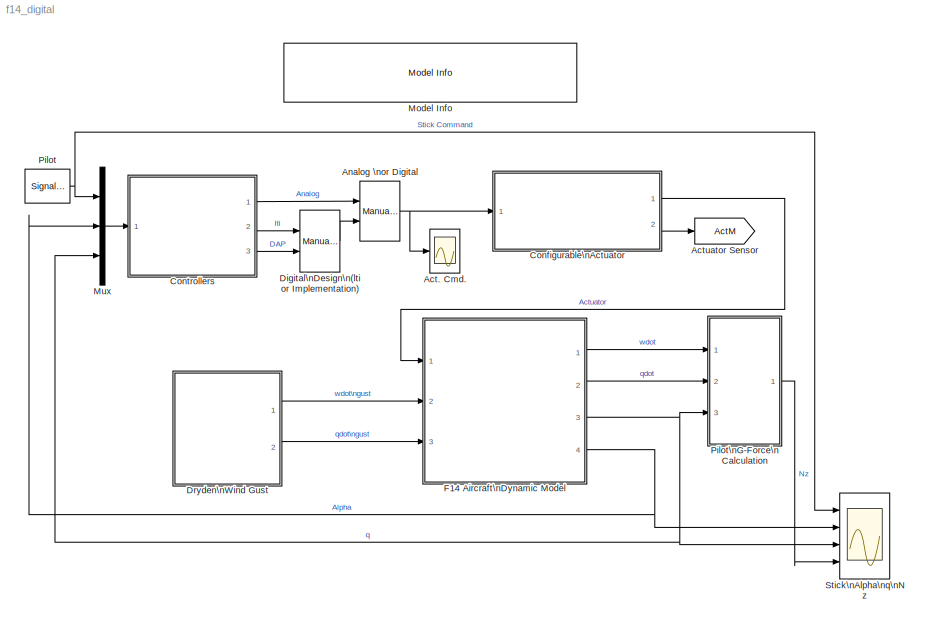
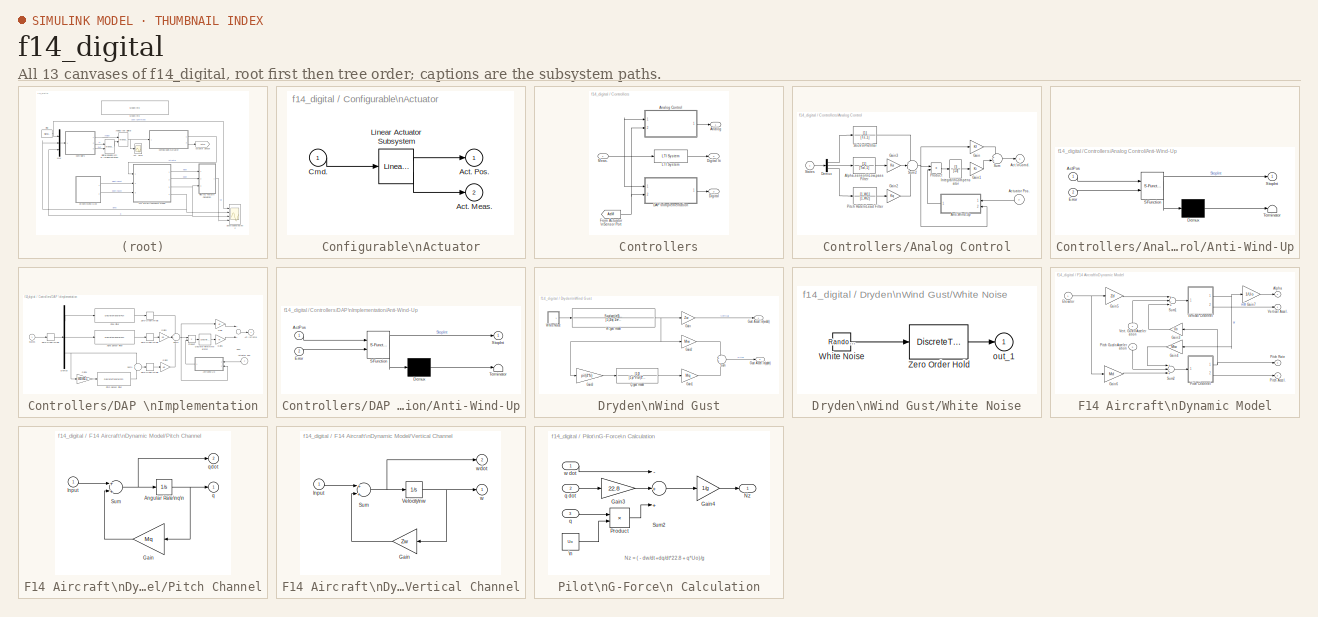
[diagram: thumbnail index - all 13 canvases of the model, root first then tree order]
MODEL f14_digital
KIND model
CONFIG PreLoadFcn = f14dat_digital
BLOCK [Scope] Act. Cmd.
  DataFormat = Array
  LimitDataPoints = off
  NumInputPorts = 1
  Ports = [1]
  TickLabels = on
  TimeRange = 15
  YMax = 2.5
  YMin = -2.5
BLOCK [Goto] Actuator Sensor
  DialogController = Simulink.DDGSource
  GotoTag = ActM
  TagVisibility = global
BLOCK [Reference] Analog \nor Digital  REF=simulink/Signal\nRouting/Manual Switch
  Ports = [2, 1]
  ShowPortLabels = on
  SourceBlock = simulink/Signal\nRouting/Manual Switch
  SourceType = Manual Switch
  action = 0
  sw = 1
BLOCK [SubSystem] Configurable\nActuator
  BlockChoice = Linear Actuator Subsystem
  MemberBlocks = Linear Actuator Subsystem,Non-Linear Actuator Subsystem
  MinAlgLoopOccurrences = off
  Ports = [1, 2]
  PropExecContextAcrossSSBoundary = on
  RTWSystemCode = Auto
  TemplateBlock = f14actuator/Configurable\nActuator
  TreatAsAtomicUnit = off
BLOCK [Outport] Configurable\nActuator/Act. Meas.
  BusOutputAsStruct = off
  IconDisplay = Port number
  Port = 2
BLOCK [Outport] Configurable\nActuator/Act. Pos.
  BusOutputAsStruct = off
  IconDisplay = Port number
BLOCK [Inport] Configurable\nActuator/Cmd.
  IconDisplay = Port number
  LatchInput = off
  Port = 1
BLOCK [Reference] Configurable\nActuator/Linear Actuator Subsystem  REF=f14actuator/Linear Actuator Subsystem  (lib defined in mdl_813533b40b07)
  Ports = [1, 2]
  ShowPortLabels = on
  SourceBlock = f14actuator/Linear Actuator Subsystem
BLOCK [SubSystem] Controllers
  MaskDisplay = image(contrgb)
  MaskIconFrame = on
  MaskIconOpaque = on
  MaskIconRotate = none
  MaskIconUnits = autoscale
  MinAlgLoopOccurrences = off
  Ports = [1, 3]
  PropExecContextAcrossSSBoundary = on
  RTWSystemCode = Auto
  TreatAsAtomicUnit = off
BLOCK [Outport] Controllers/Analog
  BusOutputAsStruct = off
  IconDisplay = Port number
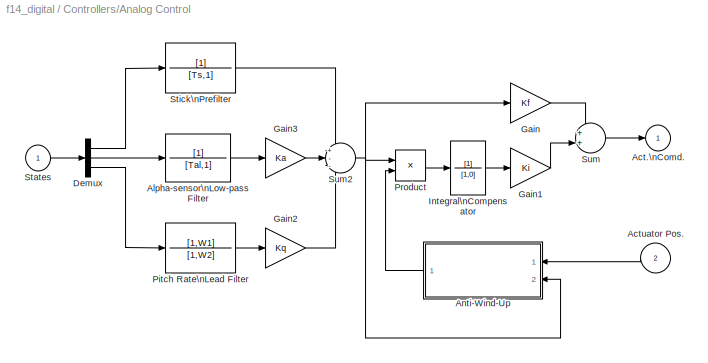
BLOCK [SubSystem] Controllers/Analog Control
  MinAlgLoopOccurrences = off
  Ports = [2, 1]
  PropExecContextAcrossSSBoundary = on
  RTWSystemCode = Auto
  TreatAsAtomicUnit = off
BLOCK [Outport] Controllers/Analog Control/Act.\nComd.
  BusOutputAsStruct = off
  IconDisplay = Port number
  InitialOutput = 0
BLOCK [Inport] Controllers/Analog Control/Actuator Pos.
  IconDisplay = Port number
  LatchInput = off
  Port = 2
BLOCK [TransferFcn] Controllers/Analog Control/Alpha-sensor\nLow-pass Filter
  Denominator = [Tal,1]
  MaskIconFrame = on
  MaskIconOpaque = on
  MaskIconRotate = none
  MaskIconUnits = autoscale
BLOCK [SubSystem] Controllers/Analog Control/Anti-Wind-Up
  MaskDescription = Stateflow diagram
  MaskDisplay = plot(sf('Private','sfblk','xIcon'),sf('Private','sfblk','yIcon'));text(0.5,0,sf('Private', 'sfblk', 'tIcon'),'HorizontalAl','Center','VerticalAl','Bottom');
  MaskIconFrame = off
  MaskIconOpaque = off
  MaskIconRotate = none
  MaskIconUnits = autoscale
  MaskSelfModifiable = on
  MaskType = Stateflow
  MinAlgLoopOccurrences = off
  Ports = [2, 1]
  PropExecContextAcrossSSBoundary = on
  RTWSystemCode = Auto
  TreatAsAtomicUnit = off
BLOCK [Demux] Controllers/Analog Control/Anti-Wind-Up/ Demux 
  Outputs = 1
  Ports = [1, 1]
BLOCK [S-Function] Controllers/Analog Control/Anti-Wind-Up/ SFunction 
  FunctionName = sf_sfun
  PortCounts = [2 2]
  Ports = [2, 2]
  Tag = Stateflow S-Function f14_digital 7
BLOCK [Terminator] Controllers/Analog Control/Anti-Wind-Up/ Terminator 
BLOCK [Inport] Controllers/Analog Control/Anti-Wind-Up/ActPos
  IconDisplay = Port number
  LatchInput = off
  Port = 1
BLOCK [Inport] Controllers/Analog Control/Anti-Wind-Up/Error
  IconDisplay = Port number
  LatchInput = off
  Port = 2
BLOCK [Outport] Controllers/Analog Control/Anti-Wind-Up/StopInt
  BusOutputAsStruct = off
  IconDisplay = Port number
BLOCK [Demux] Controllers/Analog Control/Demux
  Outputs = 3
  Ports = [1, 3]
BLOCK [Gain] Controllers/Analog Control/Gain
  Gain = Kf
BLOCK [Gain] Controllers/Analog Control/Gain1
  Gain = Ki
BLOCK [Gain] Controllers/Analog Control/Gain2
  Gain = Kq
  MaskIconFrame = on
  MaskIconOpaque = on
  MaskIconRotate = none
  MaskIconUnits = autoscale
BLOCK [Gain] Controllers/Analog Control/Gain3
  Gain = Ka
  MaskIconFrame = on
  MaskIconOpaque = on
  MaskIconRotate = none
  MaskIconUnits = autoscale
BLOCK [TransferFcn] Controllers/Analog Control/Integral\nCompensator
  Denominator = [1,0]
BLOCK [TransferFcn] Controllers/Analog Control/Pitch Rate\nLead Filter
  Denominator = [1,W2]
  MaskIconFrame = on
  MaskIconOpaque = on
  MaskIconRotate = none
  MaskIconUnits = autoscale
  Numerator = [1,W1]
BLOCK [Product] Controllers/Analog Control/Product
  Ports = [2, 1]
BLOCK [Inport] Controllers/Analog Control/States
  IconDisplay = Port number
  LatchInput = off
  Port = 1
BLOCK [TransferFcn] Controllers/Analog Control/Stick\nPrefilter
  Denominator = [Ts,1]
BLOCK [Sum] Controllers/Analog Control/Sum
  IconShape = round
  Inputs = 2
  Ports = [2, 1]
BLOCK [Sum] Controllers/Analog Control/Sum2
  IconShape = round
  Inputs = +--
  Ports = [3, 1]
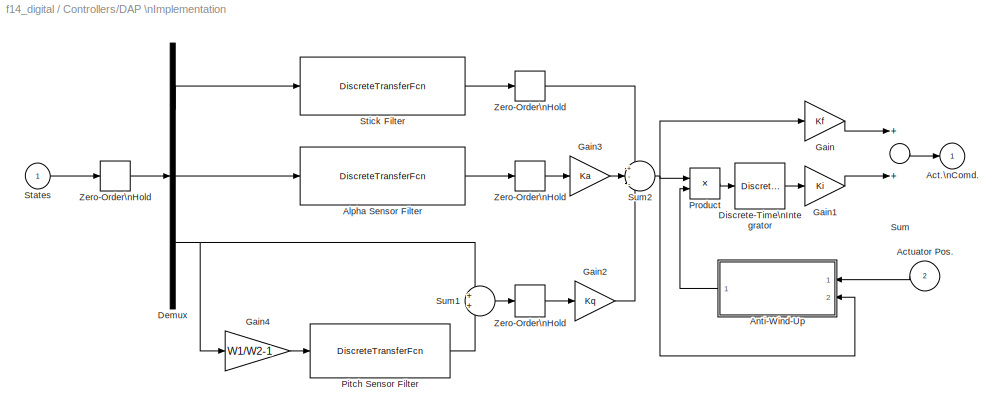
BLOCK [SubSystem] Controllers/DAP \nImplementation
  MinAlgLoopOccurrences = off
  Ports = [2, 1]
  PropExecContextAcrossSSBoundary = on
  RTWSystemCode = Auto
  TreatAsAtomicUnit = off
BLOCK [Outport] Controllers/DAP \nImplementation/Act.\nComd.
  BusOutputAsStruct = off
  IconDisplay = Port number
  InitialOutput = 0
BLOCK [Inport] Controllers/DAP \nImplementation/Actuator Pos.
  IconDisplay = Port number
  LatchInput = off
  Port = 2
BLOCK [DiscreteTransferFcn] Controllers/DAP \nImplementation/Alpha Sensor Filter
  Denominator = [1 -exp(-deltat1/Tal)]
  Numerator = [1-exp(-deltat1/Tal)]
  SampleTime = deltat1
BLOCK [SubSystem] Controllers/DAP \nImplementation/Anti-Wind-Up
  MaskDescription = Stateflow diagram
  MaskDisplay = plot(sf('Private','sfblk','xIcon'),sf('Private','sfblk','yIcon'));text(0.5,0,sf('Private', 'sfblk', 'tIcon'),'HorizontalAl','Center','VerticalAl','Bottom');
  MaskIconFrame = off
  MaskIconOpaque = off
  MaskIconRotate = none
  MaskIconUnits = autoscale
  MaskSelfModifiable = on
  MaskType = Stateflow
  MinAlgLoopOccurrences = off
  Ports = [2, 1]
  PropExecContextAcrossSSBoundary = on
  RTWSystemCode = Auto
  TreatAsAtomicUnit = off
BLOCK [Demux] Controllers/DAP \nImplementation/Anti-Wind-Up/ Demux 
  Outputs = 1
  Ports = [1, 1]
BLOCK [S-Function] Controllers/DAP \nImplementation/Anti-Wind-Up/ SFunction 
  FunctionName = sf_sfun
  PortCounts = [2 2]
  Ports = [2, 2]
  Tag = Stateflow S-Function f14_digital 2
BLOCK [Terminator] Controllers/DAP \nImplementation/Anti-Wind-Up/ Terminator 
BLOCK [Inport] Controllers/DAP \nImplementation/Anti-Wind-Up/ActPos
  IconDisplay = Port number
  LatchInput = off
  Port = 1
BLOCK [Inport] Controllers/DAP \nImplementation/Anti-Wind-Up/Error
  IconDisplay = Port number
  LatchInput = off
  Port = 2
BLOCK [Outport] Controllers/DAP \nImplementation/Anti-Wind-Up/StopInt
  BusOutputAsStruct = off
  IconDisplay = Port number
BLOCK [Demux] Controllers/DAP \nImplementation/Demux
  Outputs = 3
  Ports = [1, 3]
BLOCK [DiscreteIntegrator] Controllers/DAP \nImplementation/Discrete-Time\nIntegrator
  ExternalReset = none
  ICPrevOutput = DiscIntNeverNeededParam
  ICPrevScaledInput = DiscIntNeverNeededParam
  InitialConditionSource = internal
  IntegratorMethod = Integration: Forward Euler
  Ports = [1, 1]
  SampleTime = deltat
BLOCK [Gain] Controllers/DAP \nImplementation/Gain
  Gain = Kf
BLOCK [Gain] Controllers/DAP \nImplementation/Gain1
  Gain = Ki
BLOCK [Gain] Controllers/DAP \nImplementation/Gain2
  Gain = Kq
  MaskIconFrame = on
  MaskIconOpaque = on
  MaskIconRotate = none
  MaskIconUnits = autoscale
BLOCK [Gain] Controllers/DAP \nImplementation/Gain3
  Gain = Ka
  MaskIconFrame = on
  MaskIconOpaque = on
  MaskIconRotate = none
  MaskIconUnits = autoscale
BLOCK [Gain] Controllers/DAP \nImplementation/Gain4
  Gain = W1/W2-1
  MaskIconFrame = on
  MaskIconOpaque = on
  MaskIconRotate = none
  MaskIconUnits = autoscale
BLOCK [DiscreteTransferFcn] Controllers/DAP \nImplementation/Pitch Sensor Filter
  Denominator = [1 -exp(-W2*deltat1)]
  Numerator = [1-exp(-W2*deltat1)]
  SampleTime = deltat1
BLOCK [Product] Controllers/DAP \nImplementation/Product
  Ports = [2, 1]
BLOCK [Inport] Controllers/DAP \nImplementation/States
  IconDisplay = Port number
  LatchInput = off
  Port = 1
BLOCK [DiscreteTransferFcn] Controllers/DAP \nImplementation/Stick Filter
  Denominator = [1 -exp(-deltat1/Ts)]
  Numerator = [1-exp(-deltat1/Ts)]
  SampleTime = deltat1
BLOCK [Sum] Controllers/DAP \nImplementation/Sum
  Inputs = 2
  Ports = [2, 1]
BLOCK [Sum] Controllers/DAP \nImplementation/Sum1
  IconShape = round
  Inputs = 2
  Ports = [2, 1]
BLOCK [Sum] Controllers/DAP \nImplementation/Sum2
  IconShape = round
  Inputs = +--
  Ports = [3, 1]
BLOCK [ZeroOrderHold] Controllers/DAP \nImplementation/Zero-Order\nHold
  SampleTime = deltat
BLOCK [ZeroOrderHold] Controllers/DAP \nImplementation/Zero-Order\nHold 
  SampleTime = deltat1
BLOCK [ZeroOrderHold] Controllers/DAP \nImplementation/Zero-Order\nHold  
  SampleTime = deltat
BLOCK [ZeroOrderHold] Controllers/DAP \nImplementation/Zero-Order\nHold   
  SampleTime = deltat
BLOCK [Outport] Controllers/Digital
  BusOutputAsStruct = off
  IconDisplay = Port number
  Port = 3
BLOCK [Outport] Controllers/Digital lti
  BusOutputAsStruct = off
  IconDisplay = Port number
  Port = 2
BLOCK [From] Controllers/From Actuator \nSensor Port
  DialogController = Simulink.DDGSource
  GotoTag = ActM
BLOCK [Reference] Controllers/LTI System  REF=cstblocks/LTI System
  IC = [0]
  Ports = [1, 1]
  SourceBlock = cstblocks/LTI System
  SourceType = LTI Block
  sys = discap
BLOCK [Inport] Controllers/Meas.
  IconDisplay = Port number
  LatchInput = off
  Port = 1
BLOCK [Reference] Digital\nDesign\n(lti or Implementation)  REF=simulink/Signal\nRouting/Manual Switch
  Ports = [2, 1]
  ShowPortLabels = on
  SourceBlock = simulink/Signal\nRouting/Manual Switch
  SourceType = Manual Switch
  action = 0
  sw = 1
BLOCK [SubSystem] Dryden\nWind Gust
  MaskDisplay = image(weatherrgb)
  MaskIconFrame = on
  MaskIconOpaque = on
  MaskIconRotate = none
  MaskIconUnits = autoscale
  MinAlgLoopOccurrences = off
  Ports = [0, 2]
  PropExecContextAcrossSSBoundary = on
  RTWSystemCode = Auto
  TreatAsAtomicUnit = off
BLOCK [Gain] Dryden\nWind Gust/Gain
  Gain = Zw
BLOCK [Gain] Dryden\nWind Gust/Gain1
  Gain = Mq
BLOCK [Gain] Dryden\nWind Gust/Gain2
  Gain = Mw
BLOCK [Gain] Dryden\nWind Gust/Gain3
  Gain = pi/(4*b)
BLOCK [Outport] Dryden\nWind Gust/Gust Accel.\n(qdot)
  BusOutputAsStruct = off
  IconDisplay = Port number
  Port = 2
BLOCK [Outport] Dryden\nWind Gust/Gust Accel.\n(wdot)
  BusOutputAsStruct = off
  IconDisplay = Port number
BLOCK [TransferFcn] Dryden\nWind Gust/Q-gust model
  Denominator = [1 pi*Vto/(4*b)]
  Numerator = [1 0]
BLOCK [Sum] Dryden\nWind Gust/Sum
  IconShape = round
  Ports = [2, 1]
BLOCK [TransferFcn] Dryden\nWind Gust/W-gust model
  Denominator = [1 (2/a) 1/a^2]
  Numerator = Swg/sqrt(a^3)*[sqrt(3)*a,1]
BLOCK [SubSystem] Dryden\nWind Gust/White Noise
  MaskCallbackString = ||
  MaskDescription = White noise for continuous (s-domain) systems.\nBand-limited using zero-order-hold.
  MaskDisplay = plot(t(:),r2(:))
  MaskEnableString = on,on,on
  MaskHelp = Implemented using white noise into Zero Order Hold block. For faster simulation set sample time to highest value possible but in accordance with the fastest dynamics of system.
  MaskIconFrame = on
  MaskIconOpaque = on
  MaskIconRotate = none
  MaskIconUnits = autoscale
  MaskInitialization = r = rand(1,12); r2 = [r(1),r;r,r(12)]; t =[1:13;1:13];
  MaskPromptString = Noise Variance:|Sample Time:|Seed
  MaskStyleString = edit,edit,edit
  MaskTabNameString = ,,
  MaskToolTipString = on,on,on
  MaskTunableValueString = on,on,on
  MaskType = Continuous White Noise.
  MaskValueString = 10|0.01|23341
  MaskVarAliasString = ,,
  MaskVariables = Cov=@1;Ts=@2;seed=@3;
  MaskVisibilityString = on,on,on
  MinAlgLoopOccurrences = off
  Ports = [0, 1]
  PropExecContextAcrossSSBoundary = on
  RTWSystemCode = Auto
  TreatAsAtomicUnit = off
BLOCK [RandomNumber] Dryden\nWind Gust/White Noise/White Noise
  SampleTime = Ts
  Seed = seed
BLOCK [DiscreteTransferFcn] Dryden\nWind Gust/White Noise/Zero Order Hold
  Denominator = [sqrt(Ts)]
  Numerator = [sqrt(Cov)]
  SampleTime = Ts
BLOCK [Outport] Dryden\nWind Gust/White Noise/out_1
  BusOutputAsStruct = off
  IconDisplay = Port number
  InitialOutput = 0
BLOCK [SubSystem] F14 Aircraft\nDynamic Model
  MaskDisplay = image(rgb)
  MaskIconFrame = on
  MaskIconOpaque = on
  MaskIconRotate = none
  MaskIconUnits = autoscale
  MinAlgLoopOccurrences = off
  Ports = [3, 4]
  PropExecContextAcrossSSBoundary = on
  RTWSystemCode = Auto
  TreatAsAtomicUnit = off
BLOCK [Outport] F14 Aircraft\nDynamic Model/Alpha
  BusOutputAsStruct = off
  IconDisplay = Port number
  InitialOutput = 0
  Port = 4
BLOCK [Inport] F14 Aircraft\nDynamic Model/Elevator
  IconDisplay = Port number
  LatchInput = off
  Port = 1
BLOCK [Gain] F14 Aircraft\nDynamic Model/Gain3
  Gain = Uo
  MaskIconFrame = on
  MaskIconOpaque = on
  MaskIconRotate = none
  MaskIconUnits = autoscale
BLOCK [Gain] F14 Aircraft\nDynamic Model/Gain4
  Gain = Mw
  MaskIconFrame = on
  MaskIconOpaque = on
  MaskIconRotate = none
  MaskIconUnits = autoscale
BLOCK [Gain] F14 Aircraft\nDynamic Model/Gain5
  Gain = Zd
BLOCK [Gain] F14 Aircraft\nDynamic Model/Gain6
  Gain = Md
BLOCK [Gain] F14 Aircraft\nDynamic Model/Gain7
  Gain = 1/Uo
BLOCK [Outport] F14 Aircraft\nDynamic Model/Pitch Accel.
  BusOutputAsStruct = off
  IconDisplay = Port number
  InitialOutput = 0
  Port = 2
BLOCK [SubSystem] F14 Aircraft\nDynamic Model/Pitch Channel
  MinAlgLoopOccurrences = off
  Ports = [1, 2]
  PropExecContextAcrossSSBoundary = on
  RTWSystemCode = Auto
  TreatAsAtomicUnit = off
BLOCK [Integrator] F14 Aircraft\nDynamic Model/Pitch Channel/Angular Rate\nq\n
  Ports = [1, 1]
BLOCK [Gain] F14 Aircraft\nDynamic Model/Pitch Channel/Gain
  Gain = Mq
BLOCK [Inport] F14 Aircraft\nDynamic Model/Pitch Channel/Input
  IconDisplay = Port number
  LatchInput = off
  Port = 1
BLOCK [Sum] F14 Aircraft\nDynamic Model/Pitch Channel/Sum
  Ports = [2, 1]
BLOCK [Outport] F14 Aircraft\nDynamic Model/Pitch Channel/q
  BusOutputAsStruct = off
  IconDisplay = Port number
  InitialOutput = 0
BLOCK [Outport] F14 Aircraft\nDynamic Model/Pitch Channel/qdot
  BusOutputAsStruct = off
  IconDisplay = Port number
  InitialOutput = 0
  Port = 2
BLOCK [Inport] F14 Aircraft\nDynamic Model/Pitch Gust\nAcceleration
  IconDisplay = Port number
  LatchInput = off
  Port = 3
BLOCK [Outport] F14 Aircraft\nDynamic Model/Pitch Rate
  BusOutputAsStruct = off
  IconDisplay = Port number
  InitialOutput = 0
  Port = 3
BLOCK [Sum] F14 Aircraft\nDynamic Model/Sum1
  Inputs = +-+
  Ports = [3, 1]
BLOCK [Sum] F14 Aircraft\nDynamic Model/Sum2
  Inputs = +-+
  Ports = [3, 1]
BLOCK [Inport] F14 Aircraft\nDynamic Model/Vert. Gust\nAcceleration
  IconDisplay = Port number
  LatchInput = off
  Port = 2
BLOCK [Outport] F14 Aircraft\nDynamic Model/Vertical Accel.
  BusOutputAsStruct = off
  IconDisplay = Port number
  InitialOutput = 0
BLOCK [SubSystem] F14 Aircraft\nDynamic Model/Vertical Channel
  MinAlgLoopOccurrences = off
  Ports = [1, 2]
  PropExecContextAcrossSSBoundary = on
  RTWSystemCode = Auto
  TreatAsAtomicUnit = off
BLOCK [Gain] F14 Aircraft\nDynamic Model/Vertical Channel/Gain
  Gain = Zw
BLOCK [Inport] F14 Aircraft\nDynamic Model/Vertical Channel/Input
  IconDisplay = Port number
  LatchInput = off
  Port = 1
BLOCK [Sum] F14 Aircraft\nDynamic Model/Vertical Channel/Sum
  Ports = [2, 1]
BLOCK [Integrator] F14 Aircraft\nDynamic Model/Vertical Channel/Velocity\nw
  Ports = [1, 1]
BLOCK [Outport] F14 Aircraft\nDynamic Model/Vertical Channel/w
  BusOutputAsStruct = off
  IconDisplay = Port number
  InitialOutput = 0
BLOCK [Outport] F14 Aircraft\nDynamic Model/Vertical Channel/wdot
  BusOutputAsStruct = off
  IconDisplay = Port number
  InitialOutput = 0
  Port = 2
BLOCK [Reference] Model Info  REF=simulink/Model-Wide\nUtilities/Model Info
  BlockCM = none
  DisplayStringWithTags = F14 High Angle of Attack \nDigital Flight Control System
  Frame = off
  HorizontalTextAlignment = Center
  InitialBlockCM = none
  LeftAlignmentValue = 0.5
  MaskDisplayString = F14 High Angle of Attack \\nDigital Flight Control System
  Ports = []
  ShowPortLabels = on
  SourceBlock = simulink/Model-Wide\nUtilities/Model Info
  SourceBlockDiagram = f14_digital
  SourceType = CMBlock
  TagMaxNumber = 20
BLOCK [Mux] Mux
  Inputs = 3
  Ports = [3, 1]
BLOCK [SignalGenerator] Pilot
  Frequency = .1
  Ports = [0, 1]
  WaveForm = square
BLOCK [SubSystem] Pilot\nG-Force\n Calculation
  MinAlgLoopOccurrences = off
  Ports = [3, 1]
  PropExecContextAcrossSSBoundary = on
  RTWSystemCode = Auto
  TreatAsAtomicUnit = off
BLOCK [Gain] Pilot\nG-Force\n Calculation/Gain3
  Gain = 22.8
BLOCK [Gain] Pilot\nG-Force\n Calculation/Gain4
  Gain = 1/g
BLOCK [Outport] Pilot\nG-Force\n Calculation/Nz
  BusOutputAsStruct = off
  IconDisplay = Port number
  InitialOutput = 0
BLOCK [Product] Pilot\nG-Force\n Calculation/Product
  Ports = [2, 1]
BLOCK [Sum] Pilot\nG-Force\n Calculation/Sum2
  Inputs = -++
  Ports = [3, 1]
BLOCK [Constant] Pilot\nG-Force\n Calculation/\n
  Value = Uo
BLOCK [Inport] Pilot\nG-Force\n Calculation/q
  IconDisplay = Port number
  LatchInput = off
  Port = 3
BLOCK [Inport] Pilot\nG-Force\n Calculation/q dot
  IconDisplay = Port number
  LatchInput = off
  Port = 2
BLOCK [Inport] Pilot\nG-Force\n Calculation/w dot
  IconDisplay = Port number
  LatchInput = off
  Port = 1
BLOCK [Scope] Stick\nAlpha\nq\nNz
  DataFormat = Array
  LimitDataPoints = off
  NumInputPorts = 4
  Ports = [4]
  TickLabels = on
  TimeRange = 15
  YMax = 1~1.5~3~15
  YMin = -1~-1.5~-3~-15
ANNOTATION Pilot\nG-Force\n Calculation: Nz = ( - dw/dt +dq/dt*22.8 + q*Uo)/g
NET Analog \nor Digital:1 -> Act. Cmd.:1, Configurable\nActuator:1
LINE Configurable\nActuator/Cmd.:1 -> Configurable\nActuator/Linear Actuator Subsystem:1
LINE Configurable\nActuator/Linear Actuator Subsystem:1 -> Configurable\nActuator/Act. Pos.:1
LINE Configurable\nActuator/Linear Actuator Subsystem:2 -> Configurable\nActuator/Act. Meas.:1
LINE Configurable\nActuator:1 -> F14 Aircraft\nDynamic Model:1
LINE Configurable\nActuator:2 -> Actuator Sensor:1
LINE Controllers/Analog Control/Actuator Pos.:1 -> Controllers/Analog Control/Anti-Wind-Up:1
LINE Controllers/Analog Control/Alpha-sensor\nLow-pass Filter:1 -> Controllers/Analog Control/Gain3:1
LINE Controllers/Analog Control/Anti-Wind-Up/ Demux :1 -> Controllers/Analog Control/Anti-Wind-Up/ Terminator :1
LINE Controllers/Analog Control/Anti-Wind-Up/ SFunction :1 -> Controllers/Analog Control/Anti-Wind-Up/ Demux :1
LINE Controllers/Analog Control/Anti-Wind-Up/ SFunction :2 -> Controllers/Analog Control/Anti-Wind-Up/StopInt:1
LINE Controllers/Analog Control/Anti-Wind-Up/ActPos:1 -> Controllers/Analog Control/Anti-Wind-Up/ SFunction :1
LINE Controllers/Analog Control/Anti-Wind-Up/Error:1 -> Controllers/Analog Control/Anti-Wind-Up/ SFunction :2
LINE Controllers/Analog Control/Anti-Wind-Up:1 -> Controllers/Analog Control/Product:2
LINE Controllers/Analog Control/Demux:1 -> Controllers/Analog Control/Stick\nPrefilter:1
LINE Controllers/Analog Control/Demux:2 -> Controllers/Analog Control/Alpha-sensor\nLow-pass Filter:1
LINE Controllers/Analog Control/Demux:3 -> Controllers/Analog Control/Pitch Rate\nLead Filter:1
LINE Controllers/Analog Control/Gain1:1 -> Controllers/Analog Control/Sum:2
LINE Controllers/Analog Control/Gain2:1 -> Controllers/Analog Control/Sum2:3
LINE Controllers/Analog Control/Gain3:1 -> Controllers/Analog Control/Sum2:2
LINE Controllers/Analog Control/Gain:1 -> Controllers/Analog Control/Sum:1
LINE Controllers/Analog Control/Integral\nCompensator:1 -> Controllers/Analog Control/Gain1:1
LINE Controllers/Analog Control/Pitch Rate\nLead Filter:1 -> Controllers/Analog Control/Gain2:1
LINE Controllers/Analog Control/Product:1 -> Controllers/Analog Control/Integral\nCompensator:1
LINE Controllers/Analog Control/States:1 -> Controllers/Analog Control/Demux:1
LINE Controllers/Analog Control/Stick\nPrefilter:1 -> Controllers/Analog Control/Sum2:1
NET Controllers/Analog Control/Sum2:1 -> Controllers/Analog Control/Anti-Wind-Up:2, Controllers/Analog Control/Gain:1, Controllers/Analog Control/Product:1
LINE Controllers/Analog Control/Sum:1 -> Controllers/Analog Control/Act.\nComd.:1
LINE Controllers/Analog Control:1 -> Controllers/Analog:1
LINE Controllers/DAP \nImplementation/Actuator Pos.:1 -> Controllers/DAP \nImplementation/Anti-Wind-Up:1
LINE Controllers/DAP \nImplementation/Alpha Sensor Filter:1 -> Controllers/DAP \nImplementation/Zero-Order\nHold  :1
LINE Controllers/DAP \nImplementation/Anti-Wind-Up/ Demux :1 -> Controllers/DAP \nImplementation/Anti-Wind-Up/ Terminator :1
LINE Controllers/DAP \nImplementation/Anti-Wind-Up/ SFunction :1 -> Controllers/DAP \nImplementation/Anti-Wind-Up/ Demux :1
LINE Controllers/DAP \nImplementation/Anti-Wind-Up/ SFunction :2 -> Controllers/DAP \nImplementation/Anti-Wind-Up/StopInt:1
LINE Controllers/DAP \nImplementation/Anti-Wind-Up/ActPos:1 -> Controllers/DAP \nImplementation/Anti-Wind-Up/ SFunction :1
LINE Controllers/DAP \nImplementation/Anti-Wind-Up/Error:1 -> Controllers/DAP \nImplementation/Anti-Wind-Up/ SFunction :2
LINE Controllers/DAP \nImplementation/Anti-Wind-Up:1 -> Controllers/DAP \nImplementation/Product:2
LINE Controllers/DAP \nImplementation/Demux:1 -> Controllers/DAP \nImplementation/Stick Filter:1
LINE Controllers/DAP \nImplementation/Demux:2 -> Controllers/DAP \nImplementation/Alpha Sensor Filter:1
NET Controllers/DAP \nImplementation/Demux:3 -> Controllers/DAP \nImplementation/Gain4:1, Controllers/DAP \nImplementation/Sum1:1
LINE Controllers/DAP \nImplementation/Discrete-Time\nIntegrator:1 -> Controllers/DAP \nImplementation/Gain1:1
LINE Controllers/DAP \nImplementation/Gain1:1 -> Controllers/DAP \nImplementation/Sum:2
LINE Controllers/DAP \nImplementation/Gain2:1 -> Controllers/DAP \nImplementation/Sum2:3
LINE Controllers/DAP \nImplementation/Gain3:1 -> Controllers/DAP \nImplementation/Sum2:2
LINE Controllers/DAP \nImplementation/Gain4:1 -> Controllers/DAP \nImplementation/Pitch Sensor Filter:1
LINE Controllers/DAP \nImplementation/Gain:1 -> Controllers/DAP \nImplementation/Sum:1
LINE Controllers/DAP \nImplementation/Pitch Sensor Filter:1 -> Controllers/DAP \nImplementation/Sum1:2
LINE Controllers/DAP \nImplementation/Product:1 -> Controllers/DAP \nImplementation/Discrete-Time\nIntegrator:1
LINE Controllers/DAP \nImplementation/States:1 -> Controllers/DAP \nImplementation/Zero-Order\nHold :1
LINE Controllers/DAP \nImplementation/Stick Filter:1 -> Controllers/DAP \nImplementation/Zero-Order\nHold:1
LINE Controllers/DAP \nImplementation/Sum1:1 -> Controllers/DAP \nImplementation/Zero-Order\nHold   :1
NET Controllers/DAP \nImplementation/Sum2:1 -> Controllers/DAP \nImplementation/Anti-Wind-Up:2, Controllers/DAP \nImplementation/Gain:1, Controllers/DAP \nImplementation/Product:1
LINE Controllers/DAP \nImplementation/Sum:1 -> Controllers/DAP \nImplementation/Act.\nComd.:1
LINE Controllers/DAP \nImplementation/Zero-Order\nHold   :1 -> Controllers/DAP \nImplementation/Gain2:1
LINE Controllers/DAP \nImplementation/Zero-Order\nHold  :1 -> Controllers/DAP \nImplementation/Gain3:1
LINE Controllers/DAP \nImplementation/Zero-Order\nHold :1 -> Controllers/DAP \nImplementation/Demux:1
LINE Controllers/DAP \nImplementation/Zero-Order\nHold:1 -> Controllers/DAP \nImplementation/Sum2:1
LINE Controllers/DAP \nImplementation:1 -> Controllers/Digital:1
NET Controllers/From Actuator \nSensor Port:1 -> Controllers/Analog Control:2, Controllers/DAP \nImplementation:2
LINE Controllers/LTI System:1 -> Controllers/Digital lti:1
NET Controllers/Meas.:1 -> Controllers/Analog Control:1, Controllers/DAP \nImplementation:1, Controllers/LTI System:1
LINE Controllers:1 -> Analog \nor Digital:1
LINE Controllers:2 -> Digital\nDesign\n(lti or Implementation):1
LINE Controllers:3 -> Digital\nDesign\n(lti or Implementation):2
LINE Digital\nDesign\n(lti or Implementation):1 -> Analog \nor Digital:2
LINE Dryden\nWind Gust/Gain1:1 -> Dryden\nWind Gust/Sum:2
LINE Dryden\nWind Gust/Gain2:1 -> Dryden\nWind Gust/Sum:1
LINE Dryden\nWind Gust/Gain3:1 -> Dryden\nWind Gust/Q-gust model:1
LINE Dryden\nWind Gust/Gain:1 -> Dryden\nWind Gust/Gust Accel.\n(wdot):1
LINE Dryden\nWind Gust/Q-gust model:1 -> Dryden\nWind Gust/Gain1:1
LINE Dryden\nWind Gust/Sum:1 -> Dryden\nWind Gust/Gust Accel.\n(qdot):1
NET Dryden\nWind Gust/W-gust model:1 -> Dryden\nWind Gust/Gain2:1, Dryden\nWind Gust/Gain3:1, Dryden\nWind Gust/Gain:1
LINE Dryden\nWind Gust/White Noise/White Noise:1 -> Dryden\nWind Gust/White Noise/Zero Order Hold:1
LINE Dryden\nWind Gust/White Noise/Zero Order Hold:1 -> Dryden\nWind Gust/White Noise/out_1:1
LINE Dryden\nWind Gust/White Noise:1 -> Dryden\nWind Gust/W-gust model:1
LINE Dryden\nWind Gust:1 -> F14 Aircraft\nDynamic Model:2
LINE Dryden\nWind Gust:2 -> F14 Aircraft\nDynamic Model:3
NET F14 Aircraft\nDynamic Model/Elevator:1 -> F14 Aircraft\nDynamic Model/Gain5:1, F14 Aircraft\nDynamic Model/Gain6:1
LINE F14 Aircraft\nDynamic Model/Gain3:1 -> F14 Aircraft\nDynamic Model/Sum1:3
LINE F14 Aircraft\nDynamic Model/Gain4:1 -> F14 Aircraft\nDynamic Model/Sum2:1
LINE F14 Aircraft\nDynamic Model/Gain5:1 -> F14 Aircraft\nDynamic Model/Sum1:1
LINE F14 Aircraft\nDynamic Model/Gain6:1 -> F14 Aircraft\nDynamic Model/Sum2:3
LINE F14 Aircraft\nDynamic Model/Gain7:1 -> F14 Aircraft\nDynamic Model/Alpha:1
NET F14 Aircraft\nDynamic Model/Pitch Channel/Angular Rate\nq\n:1 -> F14 Aircraft\nDynamic Model/Pitch Channel/Gain:1, F14 Aircraft\nDynamic Model/Pitch Channel/q:1
LINE F14 Aircraft\nDynamic Model/Pitch Channel/Gain:1 -> F14 Aircraft\nDynamic Model/Pitch Channel/Sum:2
LINE F14 Aircraft\nDynamic Model/Pitch Channel/Input:1 -> F14 Aircraft\nDynamic Model/Pitch Channel/Sum:1
NET F14 Aircraft\nDynamic Model/Pitch Channel/Sum:1 -> F14 Aircraft\nDynamic Model/Pitch Channel/Angular Rate\nq\n:1, F14 Aircraft\nDynamic Model/Pitch Channel/qdot:1
NET F14 Aircraft\nDynamic Model/Pitch Channel:1 -> F14 Aircraft\nDynamic Model/Gain3:1, F14 Aircraft\nDynamic Model/Pitch Rate:1
LINE F14 Aircraft\nDynamic Model/Pitch Channel:2 -> F14 Aircraft\nDynamic Model/Pitch Accel.:1
LINE F14 Aircraft\nDynamic Model/Pitch Gust\nAcceleration:1 -> F14 Aircraft\nDynamic Model/Sum2:2
LINE F14 Aircraft\nDynamic Model/Sum1:1 -> F14 Aircraft\nDynamic Model/Vertical Channel:1
LINE F14 Aircraft\nDynamic Model/Sum2:1 -> F14 Aircraft\nDynamic Model/Pitch Channel:1
LINE F14 Aircraft\nDynamic Model/Vert. Gust\nAcceleration:1 -> F14 Aircraft\nDynamic Model/Sum1:2
LINE F14 Aircraft\nDynamic Model/Vertical Channel/Gain:1 -> F14 Aircraft\nDynamic Model/Vertical Channel/Sum:2
LINE F14 Aircraft\nDynamic Model/Vertical Channel/Input:1 -> F14 Aircraft\nDynamic Model/Vertical Channel/Sum:1
NET F14 Aircraft\nDynamic Model/Vertical Channel/Sum:1 -> F14 Aircraft\nDynamic Model/Vertical Channel/Velocity\nw:1, F14 Aircraft\nDynamic Model/Vertical Channel/wdot:1
NET F14 Aircraft\nDynamic Model/Vertical Channel/Velocity\nw:1 -> F14 Aircraft\nDynamic Model/Vertical Channel/Gain:1, F14 Aircraft\nDynamic Model/Vertical Channel/w:1
NET F14 Aircraft\nDynamic Model/Vertical Channel:1 -> F14 Aircraft\nDynamic Model/Gain4:1, F14 Aircraft\nDynamic Model/Gain7:1
LINE F14 Aircraft\nDynamic Model/Vertical Channel:2 -> F14 Aircraft\nDynamic Model/Vertical Accel.:1
LINE F14 Aircraft\nDynamic Model:1 -> Pilot\nG-Force\n Calculation:1
LINE F14 Aircraft\nDynamic Model:2 -> Pilot\nG-Force\n Calculation:2
NET F14 Aircraft\nDynamic Model:3 -> Mux:3, Pilot\nG-Force\n Calculation:3, Stick\nAlpha\nq\nNz:3
NET F14 Aircraft\nDynamic Model:4 -> Mux:2, Stick\nAlpha\nq\nNz:2
LINE Mux:1 -> Controllers:1
NET Pilot:1 -> Mux:1, Stick\nAlpha\nq\nNz:1
LINE Pilot\nG-Force\n Calculation/Gain3:1 -> Pilot\nG-Force\n Calculation/Sum2:2
LINE Pilot\nG-Force\n Calculation/Gain4:1 -> Pilot\nG-Force\n Calculation/Nz:1
LINE Pilot\nG-Force\n Calculation/Product:1 -> Pilot\nG-Force\n Calculation/Sum2:3
LINE Pilot\nG-Force\n Calculation/Sum2:1 -> Pilot\nG-Force\n Calculation/Gain4:1
LINE Pilot\nG-Force\n Calculation/\n:1 -> Pilot\nG-Force\n Calculation/Product:2
LINE Pilot\nG-Force\n Calculation/q dot:1 -> Pilot\nG-Force\n Calculation/Gain3:1
LINE Pilot\nG-Force\n Calculation/q:1 -> Pilot\nG-Force\n Calculation/Product:1
LINE Pilot\nG-Force\n Calculation/w dot:1 -> Pilot\nG-Force\n Calculation/Sum2:1
LINE Pilot\nG-Force\n Calculation:1 -> Stick\nAlpha\nq\nNz:4
note: NET lines group one-source signal fan-out (src -> all destinations, sorted); 1:1 wires keep LINE
CHART Controllers/DAP \nImplementation/Anti-Wind-Up states=2 transitions=3
  STATE_LABEL 'Integrate\\nen:StopInt=1;'
  STATE_LABEL 'Stop_Integrating\\nen: StopInt=0;'
CHART Controllers/Analog Control/Anti-Wind-Up states=2 transitions=3
  STATE_LABEL 'Integrate\\nen:StopInt=1;'
  STATE_LABEL 'Stop_Integrating\\nen: StopInt=0;'
